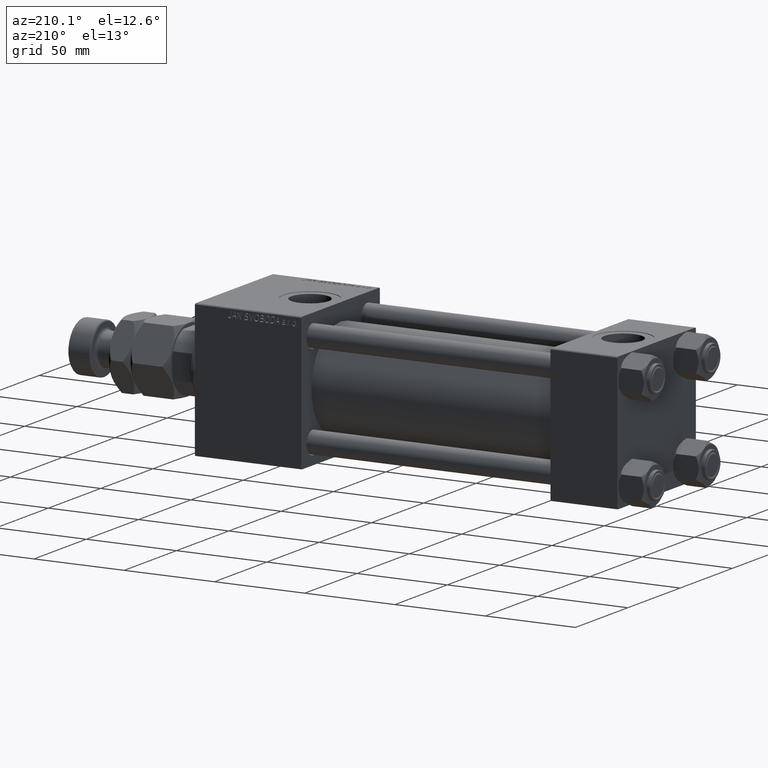
[diagram: clean part render]
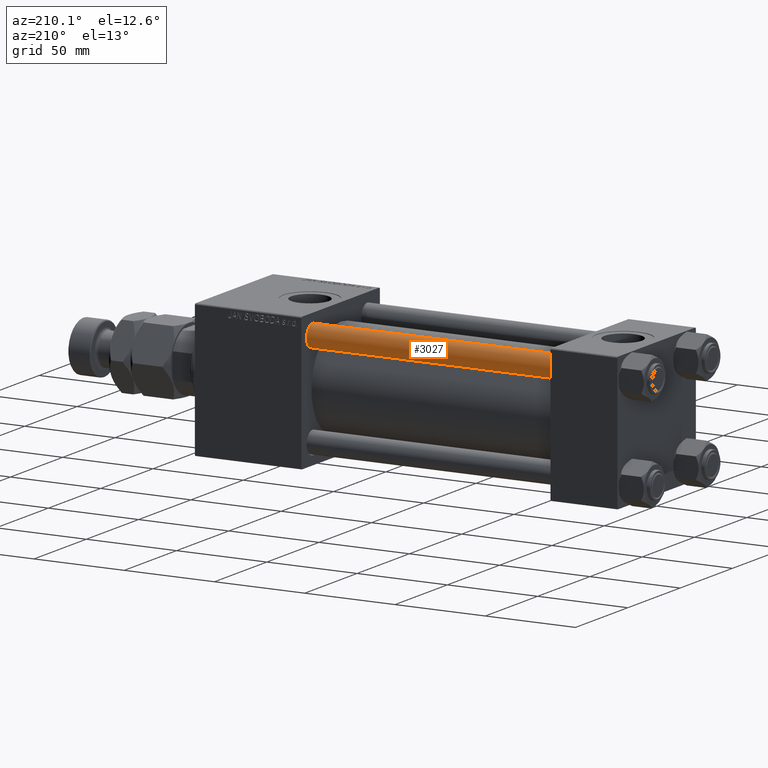
[diagram: same view with one face highlighted and labeled with its STEP entity id]
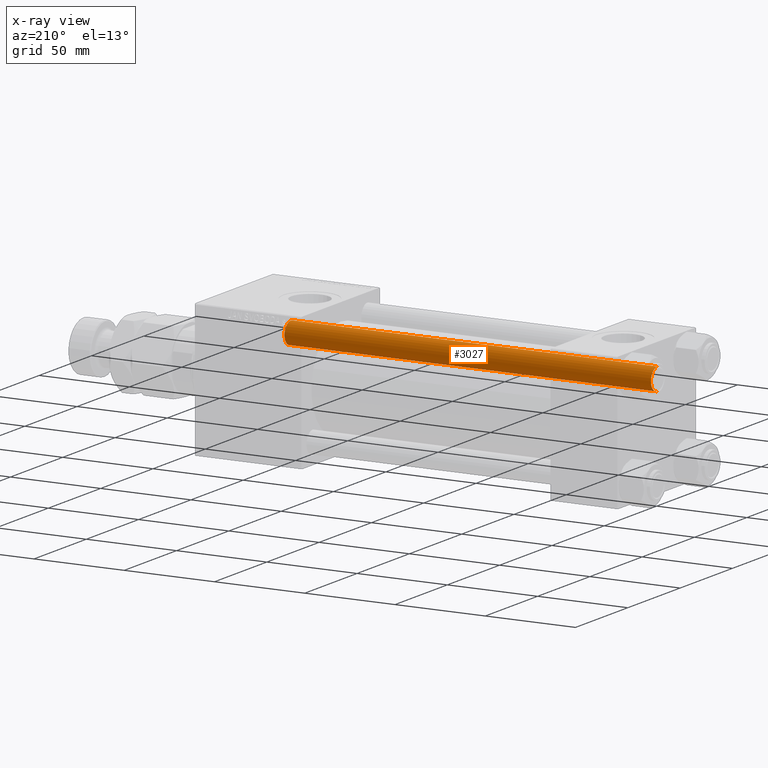
[diagram: x-ray of the same camera — body ghosted, the highlighted face saturated]
A machine part, auxiliary view. The second image highlights one B-rep face of the part: STEP entity #3027.
The next image is the same camera in x-ray: the body ghosted, the highlighted face saturated — about 0% of this face is hidden behind the body in this view.
In plain terms, the highlighted cylindrical surface (edge-blend (fillet) strip) has radius 6 mm, axis along (-1, 0, 0).
Its self-contained STEP definition (entity closure, byte-faithful):
#1220 = CARTESIAN_POINT ( 'NONE',  ( -6.000000000000000888, 0.000000000000000000, 203.5000000000000000 ) ) ;
#1884 = DIRECTION ( 'NONE',  ( -0.000000000000000000, -0.000000000000000000, -1.000000000000000000 ) ) ;
#3027 = ADVANCED_FACE ( 'NONE', ( #6339 ), #14772, .T. ) ;
#4833 = CARTESIAN_POINT ( 'NONE',  ( 6.000000000000000888, 7.347880794884120722E-16, 203.5000000000000000 ) ) ;
#5583 = LINE ( 'NONE', #9557, #44437 ) ;
#6339 = FACE_OUTER_BOUND ( 'NONE', #46664, .T. ) ;
#6988 = CIRCLE ( 'NONE', #35667, 6.000000000000000888 ) ;
#8969 = CARTESIAN_POINT ( 'NONE',  ( -6.000000000000000888, 0.000000000000000000, 0.5000000000000281997 ) ) ;
#9557 = CARTESIAN_POINT ( 'NONE',  ( 6.000000000000000888, 7.347880794884120722E-16, 204.0000000000000000 ) ) ;
#10574 = DIRECTION ( 'NONE',  ( -1.000000000000000000, 0.000000000000000000, 0.000000000000000000 ) ) ;
#13347 = VERTEX_POINT ( 'NONE', #8969 ) ;
#14772 = CYLINDRICAL_SURFACE ( 'NONE', #41504, 6.000000000000000888 ) ;
#16629 = ORIENTED_EDGE ( 'NONE', *, *, #41914, .T. ) ;
#17595 = DIRECTION ( 'NONE',  ( -0.000000000000000000, -0.000000000000000000, 1.000000000000000000 ) ) ;
#17755 = CARTESIAN_POINT ( 'NONE',  ( 0.000000000000000000, 0.000000000000000000, 203.5000000000000000 ) ) ;
#17991 = VERTEX_POINT ( 'NONE', #21176 ) ;
#21176 = CARTESIAN_POINT ( 'NONE',  ( 6.000000000000000888, 7.347880794884120722E-16, 0.5000000000000281997 ) ) ;
#22543 = DIRECTION ( 'NONE',  ( -0.000000000000000000, -0.000000000000000000, -1.000000000000000000 ) ) ;
#23314 = CARTESIAN_POINT ( 'NONE',  ( -6.000000000000000888, 0.000000000000000000, 204.0000000000000000 ) ) ;
#24469 = DIRECTION ( 'NONE',  ( 1.000000000000000000, 0.000000000000000000, 0.000000000000000000 ) ) ;
#25256 = CARTESIAN_POINT ( 'NONE',  ( 0.000000000000000000, 0.000000000000000000, 0.5000000000000281997 ) ) ;
#25668 = EDGE_CURVE ( 'NONE', #32046, #13347, #38894, .T. ) ;
#28905 = EDGE_CURVE ( 'NONE', #32046, #32250, #45542, .T. ) ;
#32046 = VERTEX_POINT ( 'NONE', #1220 ) ;
#32250 = VERTEX_POINT ( 'NONE', #4833 ) ;
#32965 = AXIS2_PLACEMENT_3D ( 'NONE', #17755, #37553, #42001 ) ;
#35378 = VECTOR ( 'NONE', #22543, 1000.000000000000000 ) ;
#35667 = AXIS2_PLACEMENT_3D ( 'NONE', #25256, #17595, #24469 ) ;
#37553 = DIRECTION ( 'NONE',  ( 0.000000000000000000, 0.000000000000000000, -1.000000000000000000 ) ) ;
#37818 = EDGE_CURVE ( 'NONE', #17991, #13347, #6988, .T. ) ;
#38535 = DIRECTION ( 'NONE',  ( -0.000000000000000000, -0.000000000000000000, -1.000000000000000000 ) ) ;
#38894 = LINE ( 'NONE', #23314, #35378 ) ;
#41504 = AXIS2_PLACEMENT_3D ( 'NONE', #50377, #38535, #10574 ) ;
#41914 = EDGE_CURVE ( 'NONE', #32250, #17991, #5583, .T. ) ;
#42001 = DIRECTION ( 'NONE',  ( 1.000000000000000000, 0.000000000000000000, 0.000000000000000000 ) ) ;
#44437 = VECTOR ( 'NONE', #1884, 1000.000000000000000 ) ;
#45542 = CIRCLE ( 'NONE', #32965, 6.000000000000000888 ) ;
#46664 = EDGE_LOOP ( 'NONE', ( #51890, #16629, #46698, #51751 ) ) ;
#46698 = ORIENTED_EDGE ( 'NONE', *, *, #37818, .T. ) ;
#50377 = CARTESIAN_POINT ( 'NONE',  ( 0.000000000000000000, 0.000000000000000000, 204.0000000000000000 ) ) ;
#51751 = ORIENTED_EDGE ( 'NONE', *, *, #25668, .F. ) ;
#51890 = ORIENTED_EDGE ( 'NONE', *, *, #28905, .T. ) ;